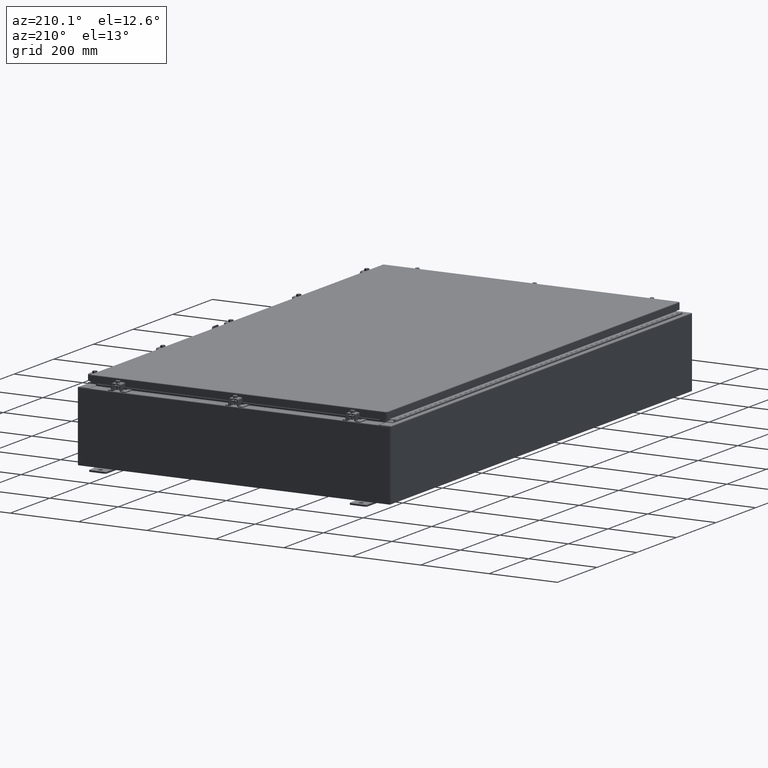
[diagram: clean part render]
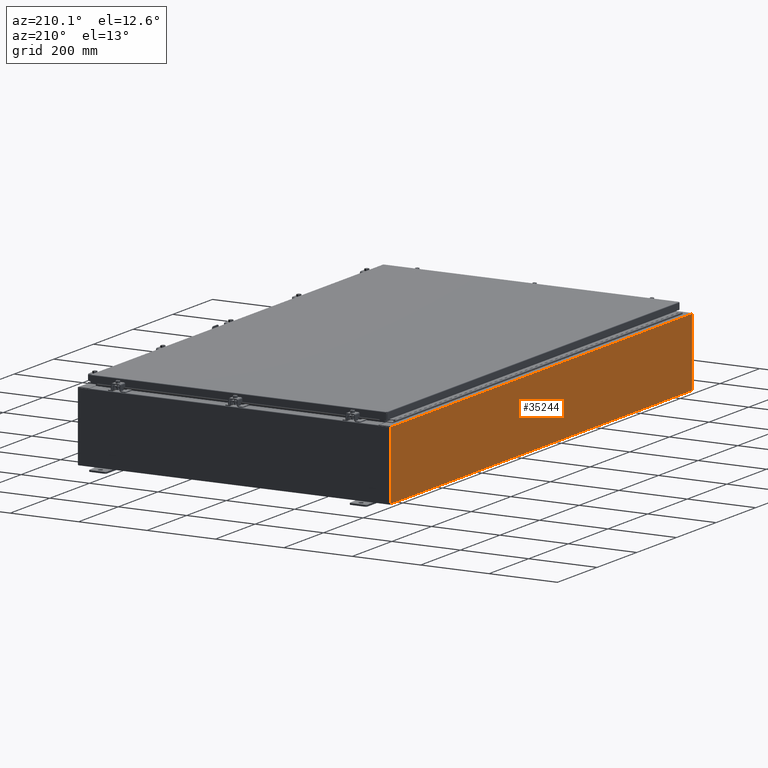
[diagram: same view with one face highlighted and labeled with its STEP entity id]
A machine part, auxiliary view. The second image highlights one B-rep face of the part: STEP entity #35244.
In plain terms, the highlighted planar face has unit normal (1, 0, 0).
Its self-contained STEP definition (entity closure, byte-faithful):
#1276 = VERTEX_POINT ( 'NONE', #40424 ) ;
#2946 = CARTESIAN_POINT ( 'NONE',  ( -18.00000000000003200, 29.92529999999998900, 7.837599999999999200 ) ) ;
#4008 = DIRECTION ( 'NONE',  ( 3.584876173029202900E-015, 0.0000000000000000000, -1.000000000000000000 ) ) ;
#4236 = DIRECTION ( 'NONE',  ( -3.584876173029202900E-015, 0.0000000000000000000, 1.000000000000000000 ) ) ;
#7737 = EDGE_CURVE ( 'NONE', #37814, #18849, #60666, .T. ) ;
#8974 = CARTESIAN_POINT ( 'NONE',  ( -18.00000000000000400, 29.92529999999998600, 0.01299999999999983600 ) ) ;
#11100 = EDGE_CURVE ( 'NONE', #1276, #36445, #40562, .T. ) ;
#11806 = EDGE_LOOP ( 'NONE', ( #36035, #55466, #51639, #60580 ) ) ;
#15610 = EDGE_CURVE ( 'NONE', #36445, #37814, #33130, .T. ) ;
#16071 = DIRECTION ( 'NONE',  ( 0.0000000000000000000, 1.000000000000000000, 0.0000000000000000000 ) ) ;
#16735 = CARTESIAN_POINT ( 'NONE',  ( -18.00000000000002800, -29.92530000000001800, 7.837599999999999200 ) ) ;
#18849 = VERTEX_POINT ( 'NONE', #8974 ) ;
#18950 = PLANE ( 'NONE',  #59944 ) ;
#20438 = CARTESIAN_POINT ( 'NONE',  ( -18.00000000000000400, 29.92529999999998900, -6.478858477053724100E-014 ) ) ;
#21392 = VECTOR ( 'NONE', #16071, 39.37007874015748100 ) ;
#22569 = VECTOR ( 'NONE', #31249, 39.37007874015748100 ) ;
#23970 = CARTESIAN_POINT ( 'NONE',  ( -18.00000000000000400, 0.0000000000000000000, -6.478858477053724100E-014 ) ) ;
#26638 = CARTESIAN_POINT ( 'NONE',  ( -18.00000000000002800, -29.92530000000001100, 7.837599999999999200 ) ) ;
#27229 = VECTOR ( 'NONE', #4236, 39.37007874015748100 ) ;
#31249 = DIRECTION ( 'NONE',  ( 3.584876173029202900E-015, 0.0000000000000000000, -1.000000000000000000 ) ) ;
#32539 = CARTESIAN_POINT ( 'NONE',  ( -18.00000000000000400, 29.92529999999998900, 0.01299999999999984700 ) ) ;
#33130 = LINE ( 'NONE', #16735, #21392 ) ;
#33971 = EDGE_CURVE ( 'NONE', #1276, #18849, #54881, .T. ) ;
#34040 = DIRECTION ( 'NONE',  ( 1.000000000000000000, 0.0000000000000000000, 3.584876173029202900E-015 ) ) ;
#35244 = ADVANCED_FACE ( 'NONE', ( #36830 ), #18950, .F. ) ;
#36035 = ORIENTED_EDGE ( 'NONE', *, *, #15610, .T. ) ;
#36445 = VERTEX_POINT ( 'NONE', #26638 ) ;
#36830 = FACE_OUTER_BOUND ( 'NONE', #11806, .T. ) ;
#37565 = DIRECTION ( 'NONE',  ( -0.0000000000000000000, 1.000000000000000000, -0.0000000000000000000 ) ) ;
#37814 = VERTEX_POINT ( 'NONE', #2946 ) ;
#40181 = VECTOR ( 'NONE', #37565, 39.37007874015748100 ) ;
#40424 = CARTESIAN_POINT ( 'NONE',  ( -18.00000000000000400, -29.92530000000001100, 0.01299999999999984700 ) ) ;
#40562 = LINE ( 'NONE', #44238, #27229 ) ;
#44238 = CARTESIAN_POINT ( 'NONE',  ( -18.00000000000000400, -29.92530000000001100, -6.478858477053724100E-014 ) ) ;
#51639 = ORIENTED_EDGE ( 'NONE', *, *, #33971, .F. ) ;
#54881 = LINE ( 'NONE', #32539, #40181 ) ;
#55466 = ORIENTED_EDGE ( 'NONE', *, *, #7737, .T. ) ;
#59944 = AXIS2_PLACEMENT_3D ( 'NONE', #23970, #34040, #4008 ) ;
#60580 = ORIENTED_EDGE ( 'NONE', *, *, #11100, .T. ) ;
#60666 = LINE ( 'NONE', #20438, #22569 ) ;